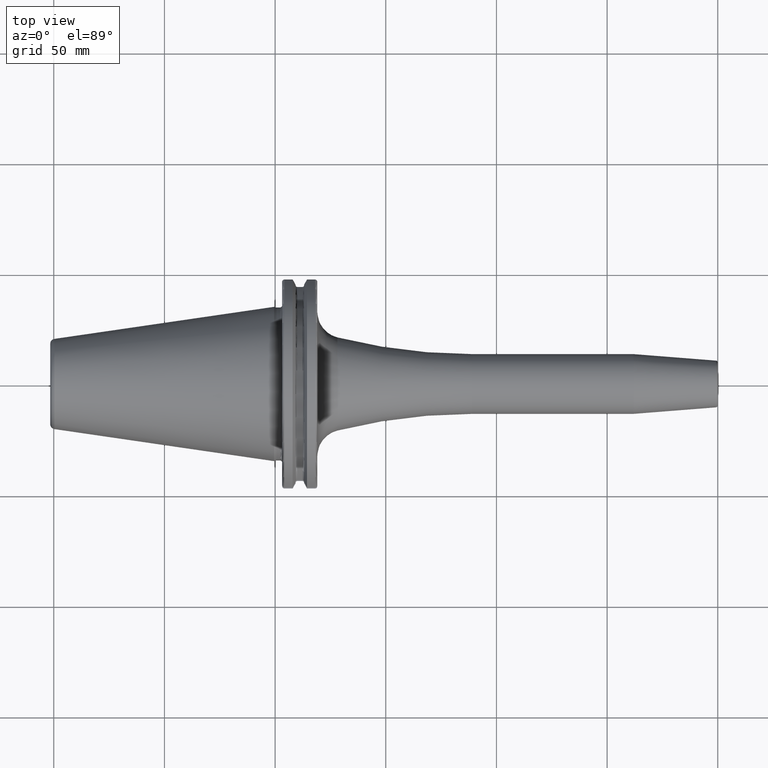
[diagram: clean part render]
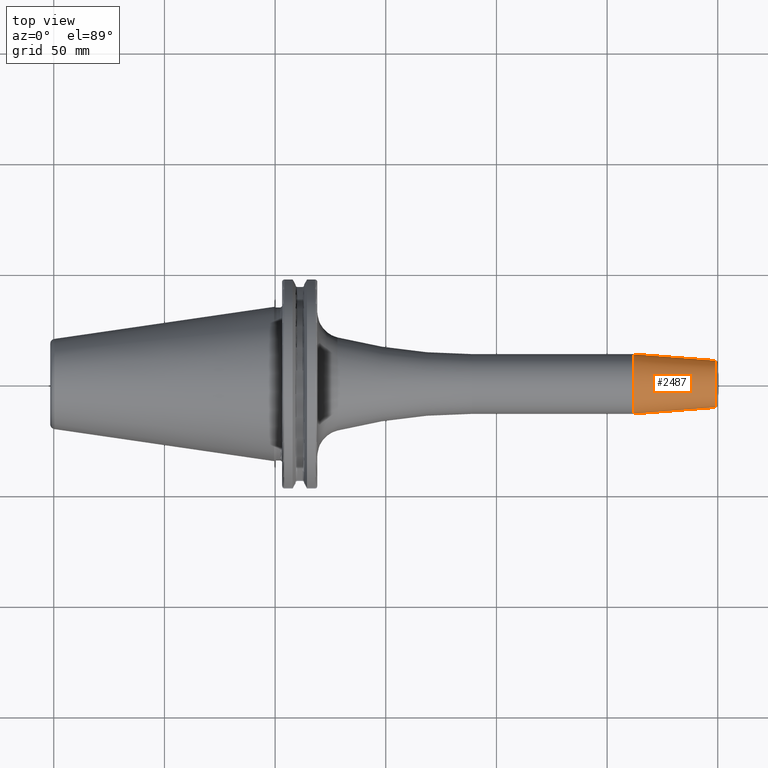
[diagram: same view with one face highlighted and labeled with its STEP entity id]
A machine part, top view. The second image highlights one B-rep face of the part: STEP entity #2487.
In plain terms, the highlighted conical surface has half-angle 4.5 deg.
Its self-contained STEP definition (entity closure, byte-faithful):
#949=CARTESIAN_POINT('',(1.618813857915E2,0.E0,0.E0));
#950=DIRECTION('',(1.E0,0.E0,0.E0));
#951=DIRECTION('',(0.E0,1.E0,0.E0));
#952=AXIS2_PLACEMENT_3D('',#949,#950,#951);
#954=CARTESIAN_POINT('',(1.990784590957E2,0.E0,0.E0));
#955=DIRECTION('',(-1.E0,0.E0,0.E0));
#956=DIRECTION('',(0.E0,-1.E0,0.E0));
#957=AXIS2_PLACEMENT_3D('',#954,#955,#956);
#974=DIRECTION('',(-9.969173337331E-1,7.845909572785E-2,1.323262560744E-13));
#975=VECTOR('',#974,3.731209403789E1);
#976=CARTESIAN_POINT('',(1.990784590957E2,1.057252684207E1,
-4.935716437151E-12));
#977=LINE('',#976,#975);
#978=DIRECTION('',(-9.969173337331E-1,-7.845909572785E-2,-1.323175808637E-13));
#979=VECTOR('',#978,3.731209403789E1);
#980=CARTESIAN_POINT('',(1.990784590957E2,-1.057252684207E1,
4.935392746872E-12));
#981=LINE('',#980,#979);
#1452=CARTESIAN_POINT('',(1.618813857915E2,1.35E1,0.E0));
#1453=CARTESIAN_POINT('',(1.618813857915E2,-1.35E1,0.E0));
#1454=VERTEX_POINT('',#1452);
#1455=VERTEX_POINT('',#1453);
#1456=CARTESIAN_POINT('',(1.990784590957E2,1.057252684207E1,0.E0));
#1457=CARTESIAN_POINT('',(1.990784590957E2,-1.057252684207E1,0.E0));
#1458=VERTEX_POINT('',#1456);
#1459=VERTEX_POINT('',#1457);
#2473=CARTESIAN_POINT('',(1.804799224436E2,0.E0,0.E0));
#2474=DIRECTION('',(-1.E0,0.E0,0.E0));
#2475=DIRECTION('',(0.E0,1.E0,0.E0));
#2476=AXIS2_PLACEMENT_3D('',#2473,#2474,#2475);
#2477=CONICAL_SURFACE('',#2476,1.203626342104E1,4.5E0);
#2479=ORIENTED_EDGE('',*,*,#2478,.F.);
#2481=ORIENTED_EDGE('',*,*,#2480,.T.);
#2482=ORIENTED_EDGE('',*,*,#2467,.F.);
#2484=ORIENTED_EDGE('',*,*,#2483,.F.);
#2485=EDGE_LOOP('',(#2479,#2481,#2482,#2484));
#2486=FACE_OUTER_BOUND('',#2485,.F.);
#2487=ADVANCED_FACE('',(#2486),#2477,.T.);
#953=CIRCLE('',#952,1.35E1);
#958=CIRCLE('',#957,1.057252684207E1);
#2467=EDGE_CURVE('',#1454,#1455,#953,.T.);
#2478=EDGE_CURVE('',#1459,#1458,#958,.T.);
#2480=EDGE_CURVE('',#1459,#1455,#981,.T.);
#2483=EDGE_CURVE('',#1458,#1454,#977,.T.);